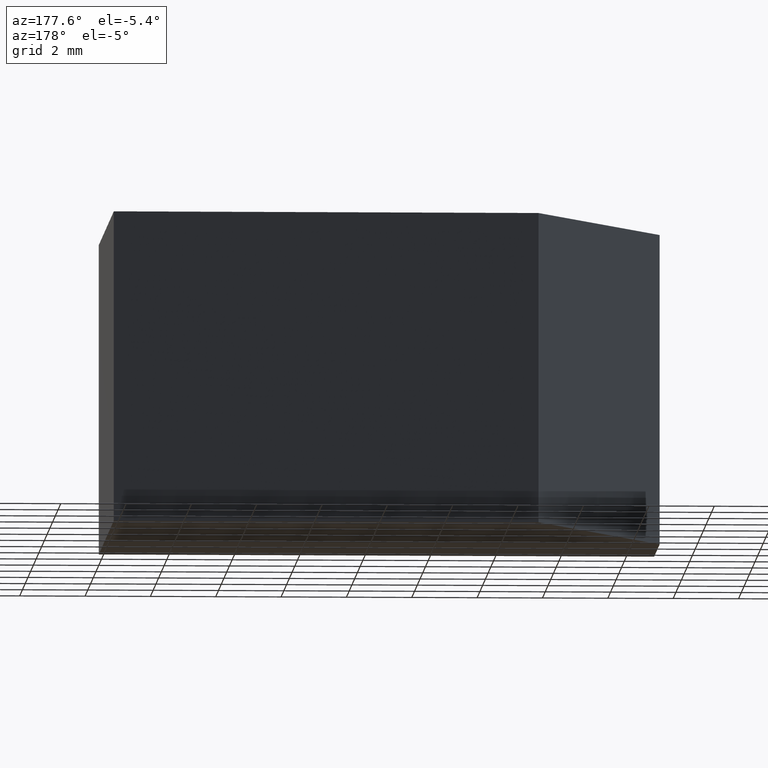
[diagram: clean part render]
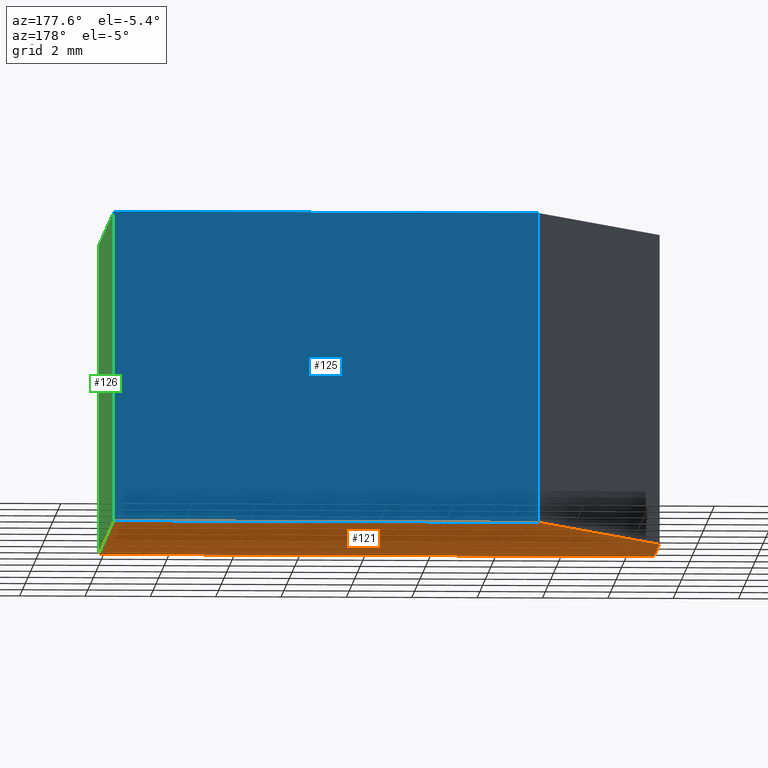
[diagram: same view with three faces highlighted in distinct colors, each labeled with its STEP entity id]
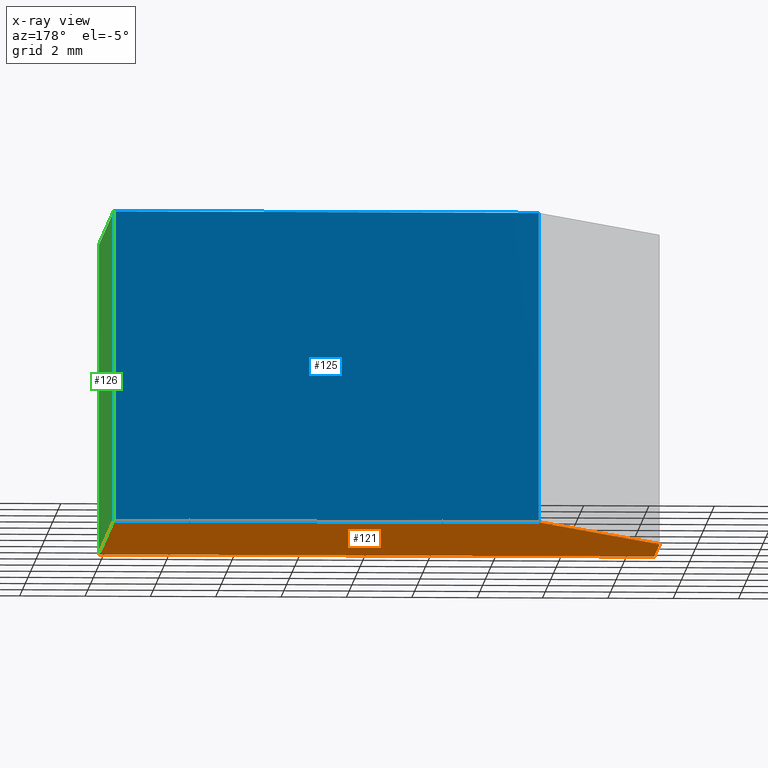
[diagram: x-ray of the same camera — body ghosted, the three highlighted faces saturated]
A machine part, auxiliary view with three faces highlighted in distinct colors.
The next image is the same camera in x-ray (body ghosted, the three faces saturated) — at least one of them is partly hidden behind the body in this view.
Their STEP definitions:

[orange] entity #121 — the highlighted planar face has unit normal (0, 0, 1).
#15=FACE_OUTER_BOUND('',#22,.T.);
#22=EDGE_LOOP('',(#84,#85,#86,#87,#88));
#29=LINE('',#193,#44);
#30=LINE('',#195,#45);
#31=LINE('',#197,#46);
#32=LINE('',#199,#47);
#33=LINE('',#200,#48);
#44=VECTOR('',#162,10.);
#45=VECTOR('',#163,10.);
#46=VECTOR('',#164,10.);
#47=VECTOR('',#165,10.);
#48=VECTOR('',#166,10.);
#59=VERTEX_POINT('',#191);
#60=VERTEX_POINT('',#192);
#61=VERTEX_POINT('',#194);
#62=VERTEX_POINT('',#196);
#63=VERTEX_POINT('',#198);
#69=EDGE_CURVE('',#59,#60,#29,.T.);
#70=EDGE_CURVE('',#61,#59,#30,.T.);
#71=EDGE_CURVE('',#62,#61,#31,.T.);
#72=EDGE_CURVE('',#63,#62,#32,.T.);
#73=EDGE_CURVE('',#60,#63,#33,.T.);
#84=ORIENTED_EDGE('',*,*,#69,.F.);
#85=ORIENTED_EDGE('',*,*,#70,.F.);
#86=ORIENTED_EDGE('',*,*,#71,.F.);
#87=ORIENTED_EDGE('',*,*,#72,.F.);
#88=ORIENTED_EDGE('',*,*,#73,.F.);
#114=PLANE('',#151);
#121=ADVANCED_FACE('',(#15),#114,.F.);
#151=AXIS2_PLACEMENT_3D('',#190,#160,#161);
#160=DIRECTION('center_axis',(0.,0.,1.));
#161=DIRECTION('ref_axis',(1.,0.,0.));
#162=DIRECTION('',(-1.,-1.70803542250024E-16,0.));
#163=DIRECTION('',(0.,1.,0.));
#164=DIRECTION('',(1.,1.24491397560035E-16,0.));
#165=DIRECTION('',(0.,-1.,0.));
#166=DIRECTION('',(-0.496138938356834,-0.868243142124459,0.));
#190=CARTESIAN_POINT('Origin',(-7.87629256574329,5.12543085524776,-4.75));
#191=CARTESIAN_POINT('',(0.,11.,-4.75));
#192=CARTESIAN_POINT('',(-13.,11.,-4.75));
#193=CARTESIAN_POINT('',(-13.,11.,-4.75));
#194=CARTESIAN_POINT('',(0.,1.83879800236431E-15,-4.75));
#195=CARTESIAN_POINT('',(0.,11.,-4.75));
#196=CARTESIAN_POINT('',(-17.,-2.77555756156289E-16,-4.75));
#197=CARTESIAN_POINT('',(0.,1.83879800236431E-15,-4.75));
#198=CARTESIAN_POINT('',(-17.,4.,-4.75));
#199=CARTESIAN_POINT('',(-17.,-2.77555756156289E-16,-4.75));
#200=CARTESIAN_POINT('',(-17.,4.,-4.75));

[blue] entity #125 — the highlighted planar face has unit normal (-0, 1, 0).
#19=FACE_OUTER_BOUND('',#26,.T.);
#26=EDGE_LOOP('',(#101,#102,#103,#104));
#29=LINE('',#193,#44);
#40=LINE('',#214,#55);
#41=LINE('',#217,#56);
#42=LINE('',#218,#57);
#44=VECTOR('',#162,10.);
#55=VECTOR('',#179,10.);
#56=VECTOR('',#182,10.);
#57=VECTOR('',#183,10.);
#59=VERTEX_POINT('',#191);
#60=VERTEX_POINT('',#192);
#67=VERTEX_POINT('',#212);
#68=VERTEX_POINT('',#216);
#69=EDGE_CURVE('',#59,#60,#29,.T.);
#80=EDGE_CURVE('',#67,#60,#40,.T.);
#81=EDGE_CURVE('',#67,#68,#41,.T.);
#82=EDGE_CURVE('',#59,#68,#42,.T.);
#101=ORIENTED_EDGE('',*,*,#81,.T.);
#102=ORIENTED_EDGE('',*,*,#82,.F.);
#103=ORIENTED_EDGE('',*,*,#69,.T.);
#104=ORIENTED_EDGE('',*,*,#80,.F.);
#118=PLANE('',#155);
#125=ADVANCED_FACE('',(#19),#118,.T.);
#155=AXIS2_PLACEMENT_3D('',#215,#180,#181);
#162=DIRECTION('',(-1.,-1.70803542250024E-16,0.));
#179=DIRECTION('',(0.,0.,-1.));
#180=DIRECTION('center_axis',(-1.70803542250024E-16,1.,0.));
#181=DIRECTION('ref_axis',(0.,0.,1.));
#182=DIRECTION('',(1.,1.70803542250024E-16,0.));
#183=DIRECTION('',(0.,0.,1.));
#191=CARTESIAN_POINT('',(0.,11.,-4.75));
#192=CARTESIAN_POINT('',(-13.,11.,-4.75));
#193=CARTESIAN_POINT('',(-13.,11.,-4.75));
#212=CARTESIAN_POINT('',(-13.,11.,4.75));
#214=CARTESIAN_POINT('',(-13.,11.,0.));
#215=CARTESIAN_POINT('Origin',(-13.,11.,0.));
#216=CARTESIAN_POINT('',(0.,11.,4.75));
#217=CARTESIAN_POINT('',(-13.,11.,4.75));
#218=CARTESIAN_POINT('',(0.,11.,0.));

[green] entity #126 — the highlighted planar face has unit normal (1, 0, 0).
#20=FACE_OUTER_BOUND('',#27,.T.);
#27=EDGE_LOOP('',(#105,#106,#107,#108));
#30=LINE('',#195,#45);
#36=LINE('',#206,#51);
#42=LINE('',#218,#57);
#43=LINE('',#220,#58);
#45=VECTOR('',#163,10.);
#51=VECTOR('',#171,10.);
#57=VECTOR('',#183,10.);
#58=VECTOR('',#186,10.);
#59=VERTEX_POINT('',#191);
#61=VERTEX_POINT('',#194);
#64=VERTEX_POINT('',#202);
#68=VERTEX_POINT('',#216);
#70=EDGE_CURVE('',#61,#59,#30,.T.);
#76=EDGE_CURVE('',#64,#61,#36,.T.);
#82=EDGE_CURVE('',#59,#68,#42,.T.);
#83=EDGE_CURVE('',#68,#64,#43,.T.);
#105=ORIENTED_EDGE('',*,*,#83,.T.);
#106=ORIENTED_EDGE('',*,*,#76,.T.);
#107=ORIENTED_EDGE('',*,*,#70,.T.);
#108=ORIENTED_EDGE('',*,*,#82,.T.);
#119=PLANE('',#156);
#126=ADVANCED_FACE('',(#20),#119,.T.);
#156=AXIS2_PLACEMENT_3D('',#219,#184,#185);
#163=DIRECTION('',(0.,1.,0.));
#171=DIRECTION('',(0.,0.,-1.));
#183=DIRECTION('',(0.,0.,1.));
#184=DIRECTION('center_axis',(1.,0.,0.));
#185=DIRECTION('ref_axis',(0.,0.,-1.));
#186=DIRECTION('',(0.,-1.,0.));
#191=CARTESIAN_POINT('',(0.,11.,-4.75));
#194=CARTESIAN_POINT('',(0.,1.83879800236431E-15,-4.75));
#195=CARTESIAN_POINT('',(0.,11.,-4.75));
#202=CARTESIAN_POINT('',(0.,1.83879800236431E-15,4.75));
#206=CARTESIAN_POINT('',(0.,1.83879800236431E-15,0.));
#216=CARTESIAN_POINT('',(0.,11.,4.75));
#218=CARTESIAN_POINT('',(0.,11.,0.));
#219=CARTESIAN_POINT('Origin',(0.,11.,0.));
#220=CARTESIAN_POINT('',(0.,11.,4.75));